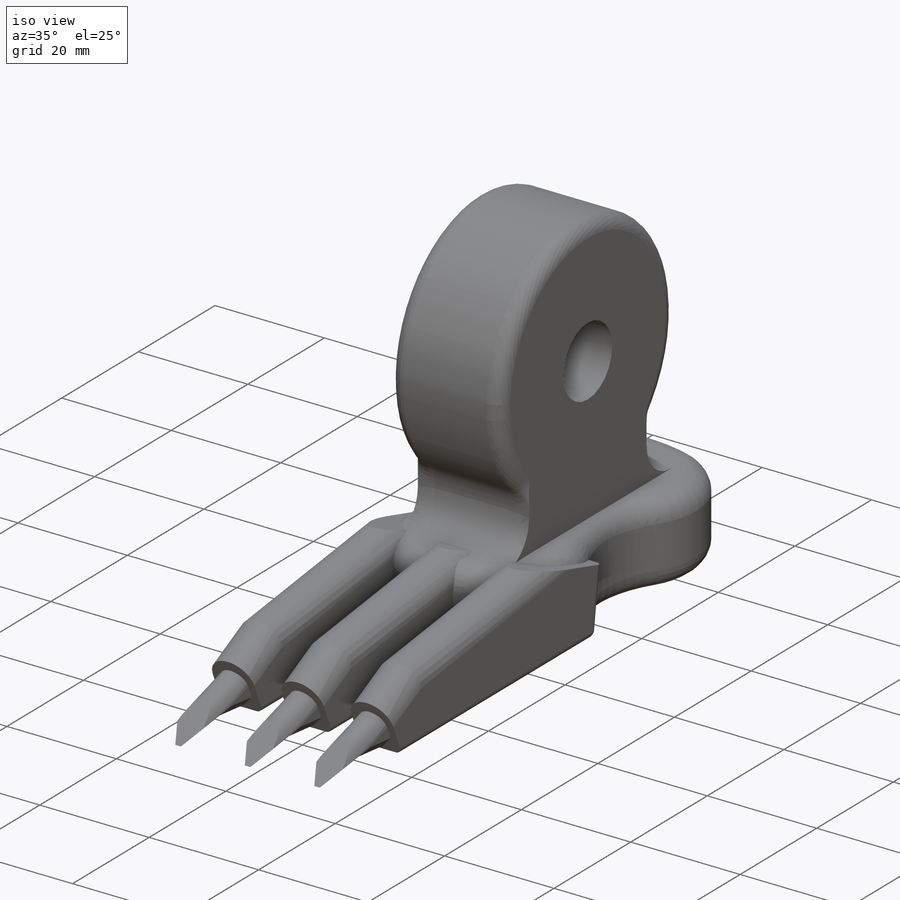
[diagram: iso view]
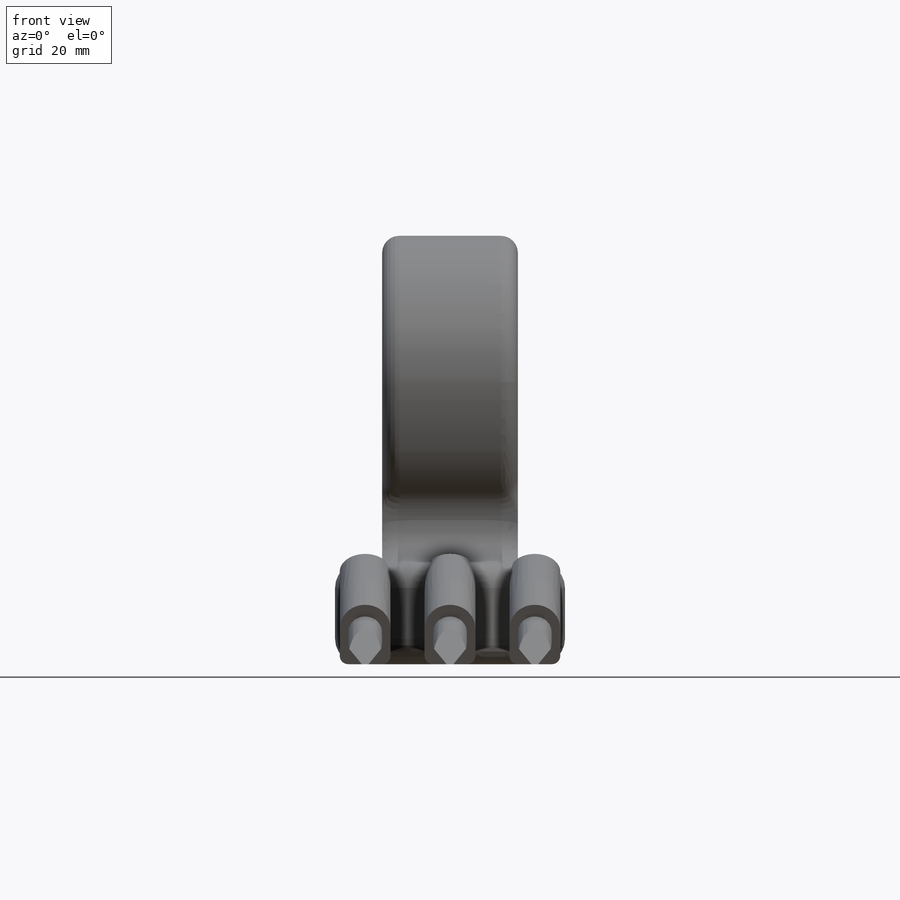
[diagram: front view]
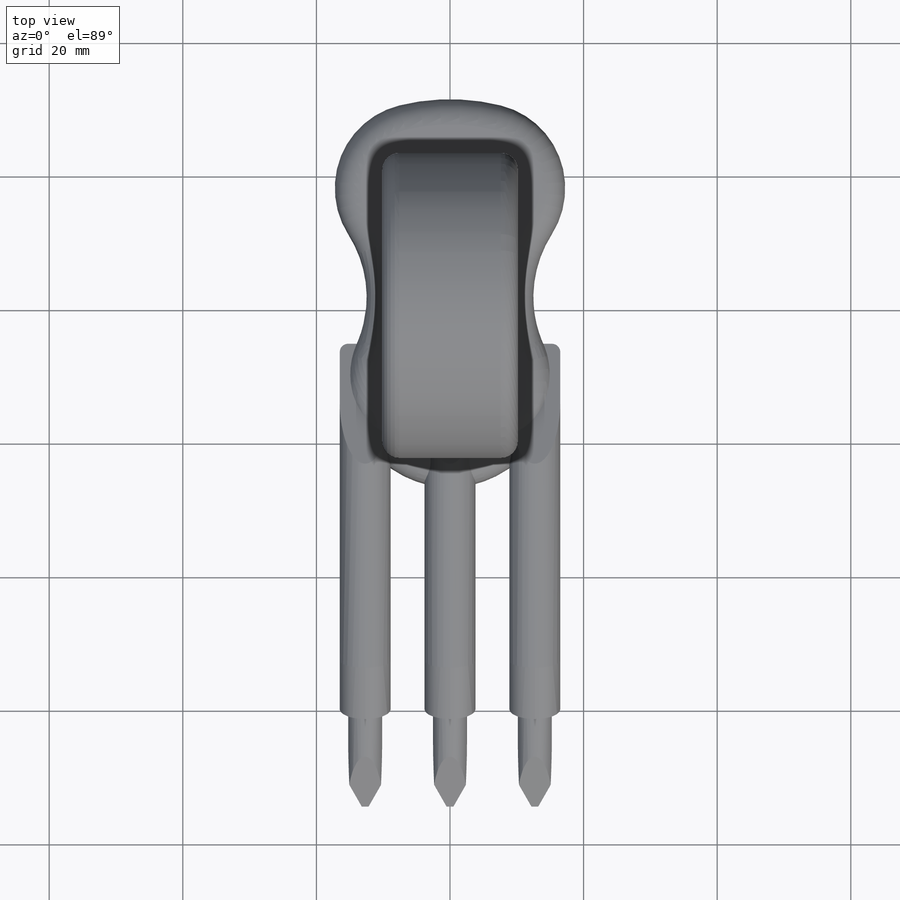
[diagram: top view]
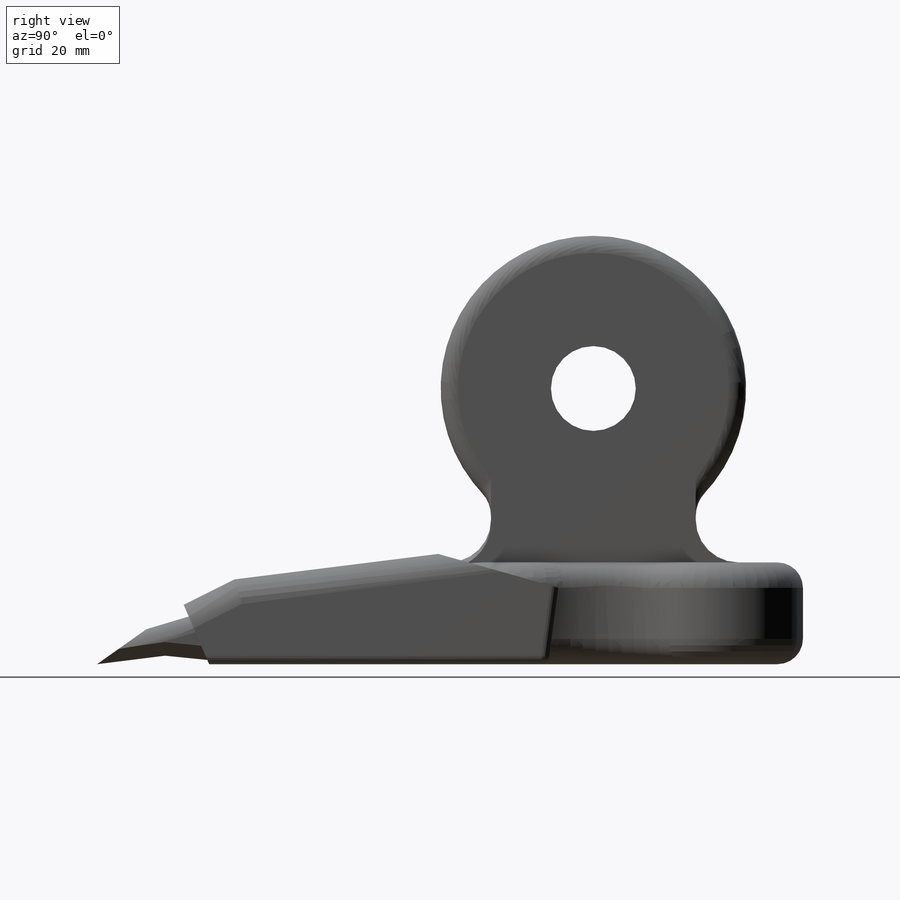
[diagram: right view]
SOLIDWORKS PART (.sldprt)
format: sldprt  version: not decoded by parser v0  size: 752,128 bytes
history: native  units: mm
features: fillet x8, sketch x5, extrude x5, material x1, chamfer x1, pattern_linear x1 (+13 scaffold rows collapsed)
feature tree (34):
  scaffold x13  (default folders/planes/origin — collapsed)
  material  "Material <not specified>"
  sketch  "Sketch1"  dims[D1=12.7mm D2=45.72mm]
  extrude  "Boss-Extrude1"  Depth=20.32mm
  fillet  "Fillet1"  Radius=2.54mm
  sketch  "Sketch2"  dims[D1=17.78mm]
  extrude  "Boss-Extrude2"  Depth=20.32mm
  fillet  "Fillet2"  Radius=5.08mm
  sketch  "Sketch4"  dims[D4=15.24mm D5=12.7mm D1=15.24mm D2=7.62mm D3=30.48mm D6=16.51mm]
  extrude  "Boss-Extrude3"  Depth=5.08mm
  fillet  "Fillet3"  Radius=3.81mm
  fillet  "Fillet4"  Radius=6.35mm
  sketch  "Sketch5"  dims[D1=50.8mm D2=3.81mm D3=8.89mm D4=3.81mm D5=7.62mm D6=30.48mm D7=5.08mm]
  extrude  "Boss-Extrude4"  Depth=7.62mm
  fillet  "Fillet5"  Radius=1.27mm
  fillet  "Fillet6"  Radius=3.81mm
  sketch  "Sketch6"  dims[D1=6.35mm D2=0.635mm D3=10.16mm D4=6.35mm D5=1.905mm]
  extrude  "Boss-Extrude5"  Depth=5.08mm
  chamfer  "Chamfer1"  Distance=2.032mm Angle=45deg
  fillet  "Fillet7"  Radius=2.54mm
  pattern_linear  "LPattern1"  Count1=2 Count2=2 Spacing1=12.7mm Spacing2=12.7mm
  fillet  "Fillet8"  Radius=1.27mm
decode coverage: 20 of 20 modeling features carry decoded parameters
note: suppression state not decoded; provenance and decode notes live in map.json
